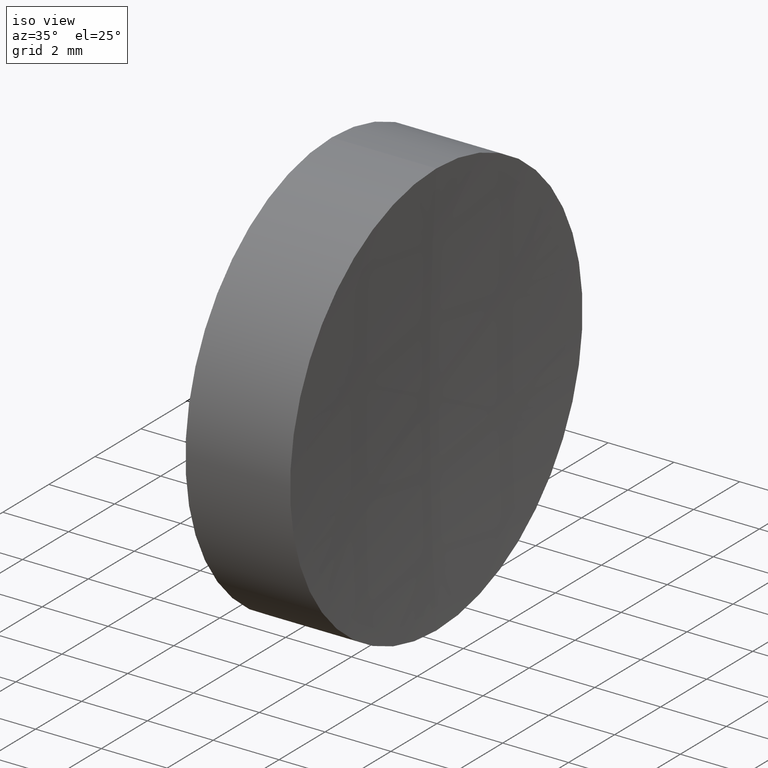
[diagram: clean part render]
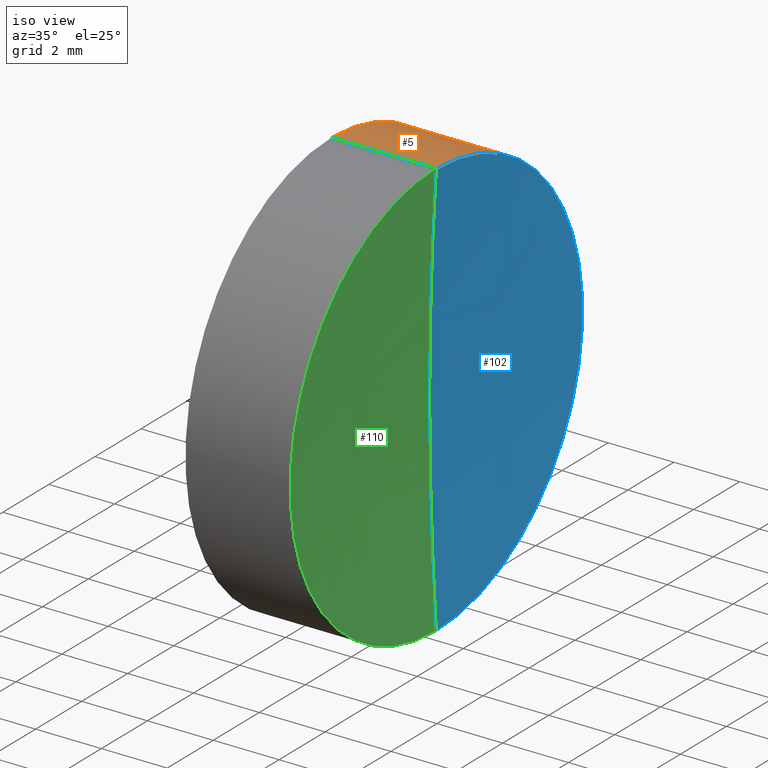
[diagram: same view with three faces highlighted in distinct colors, each labeled with its STEP entity id]
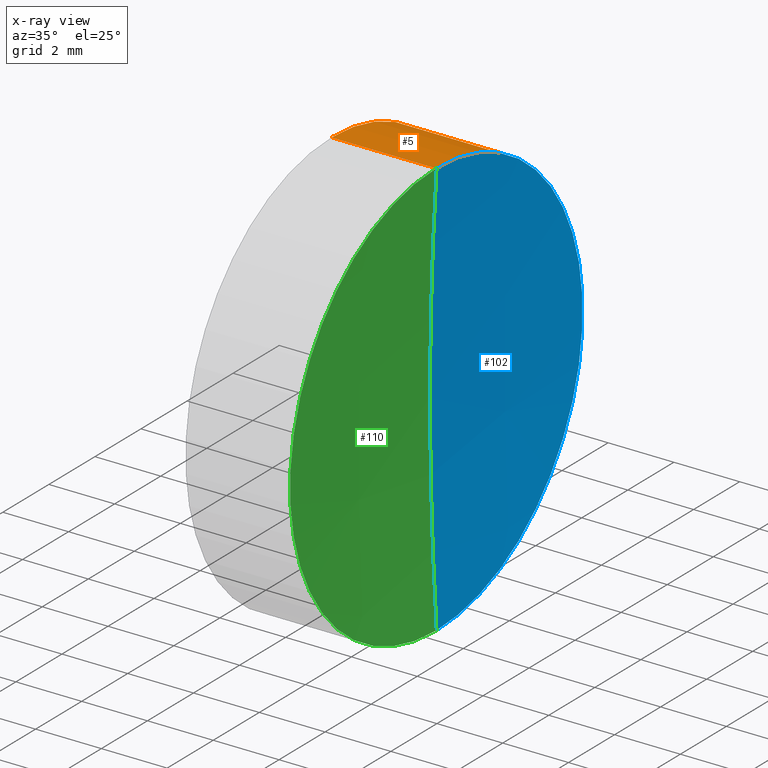
[diagram: x-ray of the same camera — body ghosted, the three highlighted faces saturated]
A machine part, iso view with three faces highlighted in distinct colors.
The next image is the same camera in x-ray (body ghosted, the three faces saturated) — at least one of them is partly hidden behind the body in this view.
Their STEP definitions:

[orange] entity #5 — the highlighted cylindrical surface (partial cylindrical patch) has radius 6.35 mm, axis along (-1, -0, -0).
#5 = ADVANCED_FACE ( 'NONE', ( #67 ), #70, .T. ) ;
#23 = AXIS2_PLACEMENT_3D ( 'NONE', #56, #160, #145 ) ;
#29 = LINE ( 'NONE', #64, #141 ) ;
#30 = DIRECTION ( 'NONE',  ( -1.000000000000000000, -0.0000000000000000000, -0.0000000000000000000 ) ) ;
#32 = EDGE_CURVE ( 'NONE', #58, #82, #116, .T. ) ;
#37 = ORIENTED_EDGE ( 'NONE', *, *, #32, .T. ) ;
#46 = DIRECTION ( 'NONE',  ( -1.000000000000000000, -0.0000000000000000000, -0.0000000000000000000 ) ) ;
#47 = VECTOR ( 'NONE', #73, 1000.000000000000000 ) ;
#52 = AXIS2_PLACEMENT_3D ( 'NONE', #83, #30, #85 ) ;
#53 = LINE ( 'NONE', #159, #47 ) ;
#55 = DIRECTION ( 'NONE',  ( 0.0000000000000000000, 0.0000000000000000000, 1.000000000000000000 ) ) ;
#56 = CARTESIAN_POINT ( 'NONE',  ( 0.0000000000000000000, 0.0000000000000000000, 0.0000000000000000000 ) ) ;
#58 = VERTEX_POINT ( 'NONE', #134 ) ;
#64 = CARTESIAN_POINT ( 'NONE',  ( 0.0000000000000000000, 7.776507174585694100E-016, -6.350000000000001400 ) ) ;
#67 = FACE_OUTER_BOUND ( 'NONE', #109, .T. ) ;
#70 = CYLINDRICAL_SURFACE ( 'NONE', #23, 6.350000000000001400 ) ;
#73 = DIRECTION ( 'NONE',  ( -1.000000000000000000, -0.0000000000000000000, -0.0000000000000000000 ) ) ;
#74 = CARTESIAN_POINT ( 'NONE',  ( 0.0000000000000000000, 7.776507174585693100E-016, -6.349999999999999600 ) ) ;
#76 = EDGE_CURVE ( 'NONE', #58, #166, #53, .T. ) ;
#78 = ORIENTED_EDGE ( 'NONE', *, *, #139, .T. ) ;
#82 = VERTEX_POINT ( 'NONE', #129 ) ;
#83 = CARTESIAN_POINT ( 'NONE',  ( 3.181816148789554000, 0.0000000000000000000, 0.0000000000000000000 ) ) ;
#85 = DIRECTION ( 'NONE',  ( 0.0000000000000000000, 0.0000000000000000000, 1.000000000000000000 ) ) ;
#92 = EDGE_CURVE ( 'NONE', #166, #133, #115, .T. ) ;
#103 = AXIS2_PLACEMENT_3D ( 'NONE', #114, #150, #55 ) ;
#109 = EDGE_LOOP ( 'NONE', ( #37, #78, #117, #158 ) ) ;
#114 = CARTESIAN_POINT ( 'NONE',  ( 0.0000000000000000000, 0.0000000000000000000, 0.0000000000000000000 ) ) ;
#115 = CIRCLE ( 'NONE', #103, 6.349999999999999600 ) ;
#116 = CIRCLE ( 'NONE', #52, 6.350000000000003200 ) ;
#117 = ORIENTED_EDGE ( 'NONE', *, *, #92, .F. ) ;
#129 = CARTESIAN_POINT ( 'NONE',  ( 3.181816148789554000, 7.776507174585711900E-016, -6.350000000000015600 ) ) ;
#133 = VERTEX_POINT ( 'NONE', #74 ) ;
#134 = CARTESIAN_POINT ( 'NONE',  ( 3.181816148789554000, 0.0000000000000000000, 6.350000000000015600 ) ) ;
#139 = EDGE_CURVE ( 'NONE', #82, #133, #29, .T. ) ;
#141 = VECTOR ( 'NONE', #46, 1000.000000000000000 ) ;
#145 = DIRECTION ( 'NONE',  ( 0.0000000000000000000, 0.0000000000000000000, 1.000000000000000000 ) ) ;
#149 = CARTESIAN_POINT ( 'NONE',  ( 0.0000000000000000000, 0.0000000000000000000, 6.349999999999999600 ) ) ;
#150 = DIRECTION ( 'NONE',  ( -1.000000000000000000, -0.0000000000000000000, -0.0000000000000000000 ) ) ;
#158 = ORIENTED_EDGE ( 'NONE', *, *, #76, .F. ) ;
#159 = CARTESIAN_POINT ( 'NONE',  ( 0.0000000000000000000, 0.0000000000000000000, 6.350000000000001400 ) ) ;
#160 = DIRECTION ( 'NONE',  ( -1.000000000000000000, -0.0000000000000000000, -0.0000000000000000000 ) ) ;
#166 = VERTEX_POINT ( 'NONE', #149 ) ;

[blue] entity #102 — the highlighted spherical surface has radius 100 mm.
#3 = AXIS2_PLACEMENT_3D ( 'NONE', #121, #131, #147 ) ;
#4 = CARTESIAN_POINT ( 'NONE',  ( 102.9800000000000000, 0.0000000000000000000, 0.0000000000000000000 ) ) ;
#6 = EDGE_CURVE ( 'NONE', #82, #100, #13, .T. ) ;
#10 = EDGE_LOOP ( 'NONE', ( #165, #148, #105 ) ) ;
#13 = CIRCLE ( 'NONE', #118, 100.0000000000000000 ) ;
#15 = DIRECTION ( 'NONE',  ( 0.0000000000000000000, 0.0000000000000000000, 1.000000000000000000 ) ) ;
#21 = DIRECTION ( 'NONE',  ( 0.0000000000000000000, 1.000000000000000000, 0.0000000000000000000 ) ) ;
#30 = DIRECTION ( 'NONE',  ( -1.000000000000000000, -0.0000000000000000000, -0.0000000000000000000 ) ) ;
#32 = EDGE_CURVE ( 'NONE', #58, #82, #116, .T. ) ;
#33 = EDGE_CURVE ( 'NONE', #58, #100, #163, .T. ) ;
#43 = CARTESIAN_POINT ( 'NONE',  ( 102.9800000000000000, 0.0000000000000000000, 0.0000000000000000000 ) ) ;
#52 = AXIS2_PLACEMENT_3D ( 'NONE', #83, #30, #85 ) ;
#58 = VERTEX_POINT ( 'NONE', #134 ) ;
#79 = FACE_OUTER_BOUND ( 'NONE', #10, .T. ) ;
#82 = VERTEX_POINT ( 'NONE', #129 ) ;
#83 = CARTESIAN_POINT ( 'NONE',  ( 3.181816148789554000, 0.0000000000000000000, 0.0000000000000000000 ) ) ;
#85 = DIRECTION ( 'NONE',  ( 0.0000000000000000000, 0.0000000000000000000, 1.000000000000000000 ) ) ;
#90 = SPHERICAL_SURFACE ( 'NONE', #135, 100.0000000000000000 ) ;
#100 = VERTEX_POINT ( 'NONE', #138 ) ;
#102 = ADVANCED_FACE ( 'NONE', ( #79 ), #90, .F. ) ;
#105 = ORIENTED_EDGE ( 'NONE', *, *, #33, .T. ) ;
#107 = DIRECTION ( 'NONE',  ( 0.0000000000000000000, -1.224646799147353200E-016, 1.000000000000000000 ) ) ;
#116 = CIRCLE ( 'NONE', #52, 6.350000000000003200 ) ;
#118 = AXIS2_PLACEMENT_3D ( 'NONE', #43, #119, #107 ) ;
#119 = DIRECTION ( 'NONE',  ( -0.0000000000000000000, 1.000000000000000000, 1.224646799147353200E-016 ) ) ;
#121 = CARTESIAN_POINT ( 'NONE',  ( 102.9800000000000000, 0.0000000000000000000, 0.0000000000000000000 ) ) ;
#129 = CARTESIAN_POINT ( 'NONE',  ( 3.181816148789554000, 7.776507174585711900E-016, -6.350000000000015600 ) ) ;
#131 = DIRECTION ( 'NONE',  ( 0.0000000000000000000, -1.000000000000000000, 0.0000000000000000000 ) ) ;
#134 = CARTESIAN_POINT ( 'NONE',  ( 3.181816148789554000, 0.0000000000000000000, 6.350000000000015600 ) ) ;
#135 = AXIS2_PLACEMENT_3D ( 'NONE', #4, #21, #15 ) ;
#138 = CARTESIAN_POINT ( 'NONE',  ( 2.979999999999996400, 0.0000000000000000000, 6.123233995736766100E-015 ) ) ;
#147 = DIRECTION ( 'NONE',  ( 0.0000000000000000000, 0.0000000000000000000, -1.000000000000000000 ) ) ;
#148 = ORIENTED_EDGE ( 'NONE', *, *, #32, .F. ) ;
#163 = CIRCLE ( 'NONE', #3, 100.0000000000000000 ) ;
#165 = ORIENTED_EDGE ( 'NONE', *, *, #6, .F. ) ;

[green] entity #110 — the highlighted spherical surface has radius 100 mm.
#3 = AXIS2_PLACEMENT_3D ( 'NONE', #121, #131, #147 ) ;
#6 = EDGE_CURVE ( 'NONE', #82, #100, #13, .T. ) ;
#11 = FACE_OUTER_BOUND ( 'NONE', #91, .T. ) ;
#12 = EDGE_CURVE ( 'NONE', #82, #58, #140, .T. ) ;
#13 = CIRCLE ( 'NONE', #118, 100.0000000000000000 ) ;
#17 = AXIS2_PLACEMENT_3D ( 'NONE', #18, #42, #45 ) ;
#18 = CARTESIAN_POINT ( 'NONE',  ( 102.9800000000000000, 0.0000000000000000000, 0.0000000000000000000 ) ) ;
#28 = DIRECTION ( 'NONE',  ( 0.0000000000000000000, 0.0000000000000000000, 1.000000000000000000 ) ) ;
#31 = SPHERICAL_SURFACE ( 'NONE', #17, 100.0000000000000000 ) ;
#33 = EDGE_CURVE ( 'NONE', #58, #100, #163, .T. ) ;
#42 = DIRECTION ( 'NONE',  ( 0.0000000000000000000, 1.000000000000000000, 0.0000000000000000000 ) ) ;
#43 = CARTESIAN_POINT ( 'NONE',  ( 102.9800000000000000, 0.0000000000000000000, 0.0000000000000000000 ) ) ;
#44 = ORIENTED_EDGE ( 'NONE', *, *, #12, .F. ) ;
#45 = DIRECTION ( 'NONE',  ( 0.0000000000000000000, 0.0000000000000000000, 1.000000000000000000 ) ) ;
#58 = VERTEX_POINT ( 'NONE', #134 ) ;
#69 = DIRECTION ( 'NONE',  ( -1.000000000000000000, -0.0000000000000000000, -0.0000000000000000000 ) ) ;
#71 = ORIENTED_EDGE ( 'NONE', *, *, #6, .T. ) ;
#82 = VERTEX_POINT ( 'NONE', #129 ) ;
#91 = EDGE_LOOP ( 'NONE', ( #44, #71, #156 ) ) ;
#100 = VERTEX_POINT ( 'NONE', #138 ) ;
#107 = DIRECTION ( 'NONE',  ( 0.0000000000000000000, -1.224646799147353200E-016, 1.000000000000000000 ) ) ;
#110 = ADVANCED_FACE ( 'NONE', ( #11 ), #31, .F. ) ;
#118 = AXIS2_PLACEMENT_3D ( 'NONE', #43, #119, #107 ) ;
#119 = DIRECTION ( 'NONE',  ( -0.0000000000000000000, 1.000000000000000000, 1.224646799147353200E-016 ) ) ;
#121 = CARTESIAN_POINT ( 'NONE',  ( 102.9800000000000000, 0.0000000000000000000, 0.0000000000000000000 ) ) ;
#129 = CARTESIAN_POINT ( 'NONE',  ( 3.181816148789554000, 7.776507174585711900E-016, -6.350000000000015600 ) ) ;
#131 = DIRECTION ( 'NONE',  ( 0.0000000000000000000, -1.000000000000000000, 0.0000000000000000000 ) ) ;
#134 = CARTESIAN_POINT ( 'NONE',  ( 3.181816148789554000, 0.0000000000000000000, 6.350000000000015600 ) ) ;
#138 = CARTESIAN_POINT ( 'NONE',  ( 2.979999999999996400, 0.0000000000000000000, 6.123233995736766100E-015 ) ) ;
#140 = CIRCLE ( 'NONE', #144, 6.350000000000003200 ) ;
#143 = CARTESIAN_POINT ( 'NONE',  ( 3.181816148789554000, 0.0000000000000000000, 0.0000000000000000000 ) ) ;
#144 = AXIS2_PLACEMENT_3D ( 'NONE', #143, #69, #28 ) ;
#147 = DIRECTION ( 'NONE',  ( 0.0000000000000000000, 0.0000000000000000000, -1.000000000000000000 ) ) ;
#156 = ORIENTED_EDGE ( 'NONE', *, *, #33, .F. ) ;
#163 = CIRCLE ( 'NONE', #3, 100.0000000000000000 ) ;